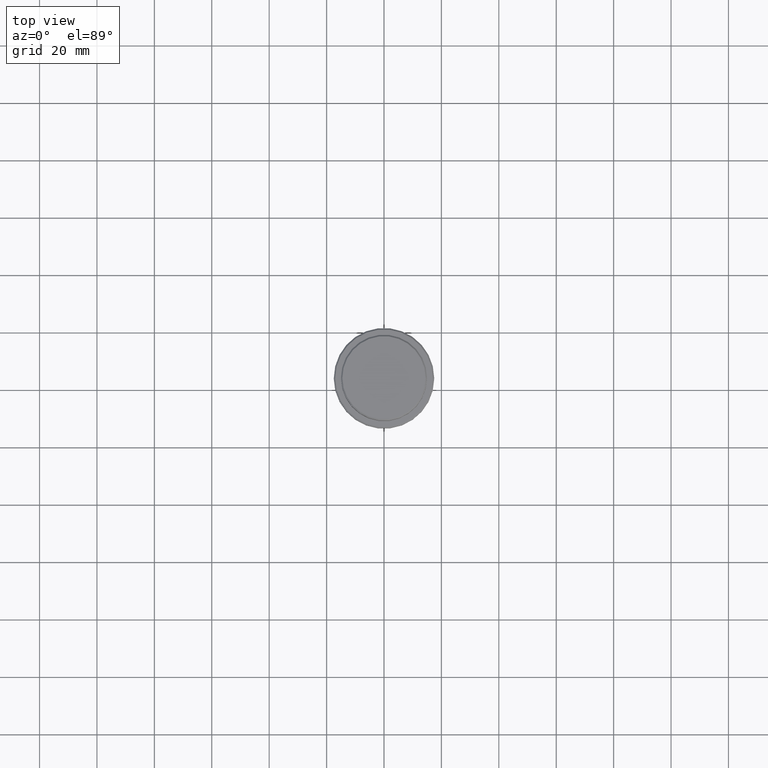
[diagram: clean part render]
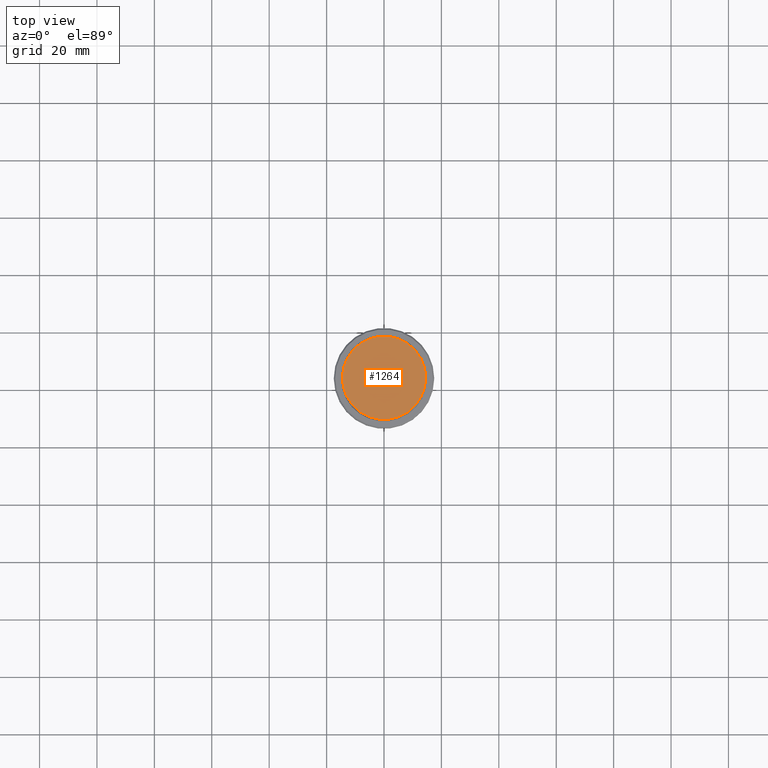
[diagram: same view with one face highlighted and labeled with its STEP entity id]
A machine part, top view. The second image highlights one B-rep face of the part: STEP entity #1264.
In plain terms, the highlighted planar face has unit normal (0, -0, 1).
Its self-contained STEP definition (entity closure, byte-faithful):
#80 = FACE_OUTER_BOUND ( 'NONE', #1063, .T. ) ;
#114 = EDGE_CURVE ( 'NONE', #915, #1290, #779, .T. ) ;
#335 = CIRCLE ( 'NONE', #1358, 14.49999999999998401 ) ;
#353 = AXIS2_PLACEMENT_3D ( 'NONE', #856, #1277, #1169 ) ;
#389 = PLANE ( 'NONE',  #1202 ) ;
#611 = CARTESIAN_POINT ( 'NONE',  ( 0.000000000000000000, 0.000000000000000000, 0.000000000000000000 ) ) ;
#665 = DIRECTION ( 'NONE',  ( 1.000000000000000000, 0.000000000000000000, 0.000000000000000000 ) ) ;
#680 = EDGE_CURVE ( 'NONE', #1290, #915, #335, .T. ) ;
#779 = CIRCLE ( 'NONE', #353, 14.49999999999998401 ) ;
#832 = CARTESIAN_POINT ( 'NONE',  ( 14.49999999999998401, 1.806354028742345013E-15, 0.000000000000000000 ) ) ;
#843 = DIRECTION ( 'NONE',  ( 1.000000000000000000, 0.000000000000000000, 0.000000000000000000 ) ) ;
#856 = CARTESIAN_POINT ( 'NONE',  ( 0.000000000000000000, 0.000000000000000000, 0.000000000000000000 ) ) ;
#915 = VERTEX_POINT ( 'NONE', #1342 ) ;
#929 = ORIENTED_EDGE ( 'NONE', *, *, #680, .T. ) ;
#1062 = ORIENTED_EDGE ( 'NONE', *, *, #114, .T. ) ;
#1063 = EDGE_LOOP ( 'NONE', ( #1062, #929 ) ) ;
#1115 = CARTESIAN_POINT ( 'NONE',  ( 0.000000000000000000, 0.000000000000000000, 0.000000000000000000 ) ) ;
#1169 = DIRECTION ( 'NONE',  ( 1.000000000000000000, 0.000000000000000000, 0.000000000000000000 ) ) ;
#1202 = AXIS2_PLACEMENT_3D ( 'NONE', #611, #1271, #843 ) ;
#1264 = ADVANCED_FACE ( 'NONE', ( #80 ), #389, .T. ) ;
#1271 = DIRECTION ( 'NONE',  ( 0.000000000000000000, -0.000000000000000000, 1.000000000000000000 ) ) ;
#1277 = DIRECTION ( 'NONE',  ( -0.000000000000000000, -0.000000000000000000, 1.000000000000000000 ) ) ;
#1290 = VERTEX_POINT ( 'NONE', #832 ) ;
#1313 = DIRECTION ( 'NONE',  ( -0.000000000000000000, -0.000000000000000000, 1.000000000000000000 ) ) ;
#1342 = CARTESIAN_POINT ( 'NONE',  ( -14.49999999999998401, 0.000000000000000000, 0.000000000000000000 ) ) ;
#1358 = AXIS2_PLACEMENT_3D ( 'NONE', #1115, #1313, #665 ) ;